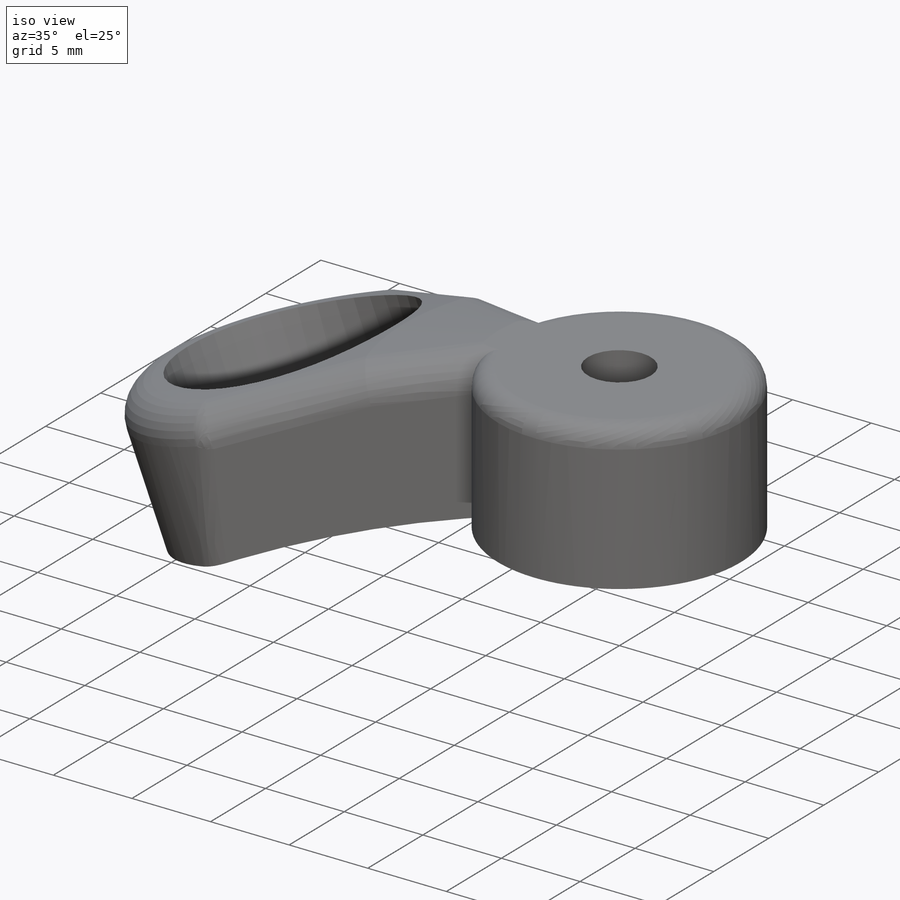
[diagram: iso view]
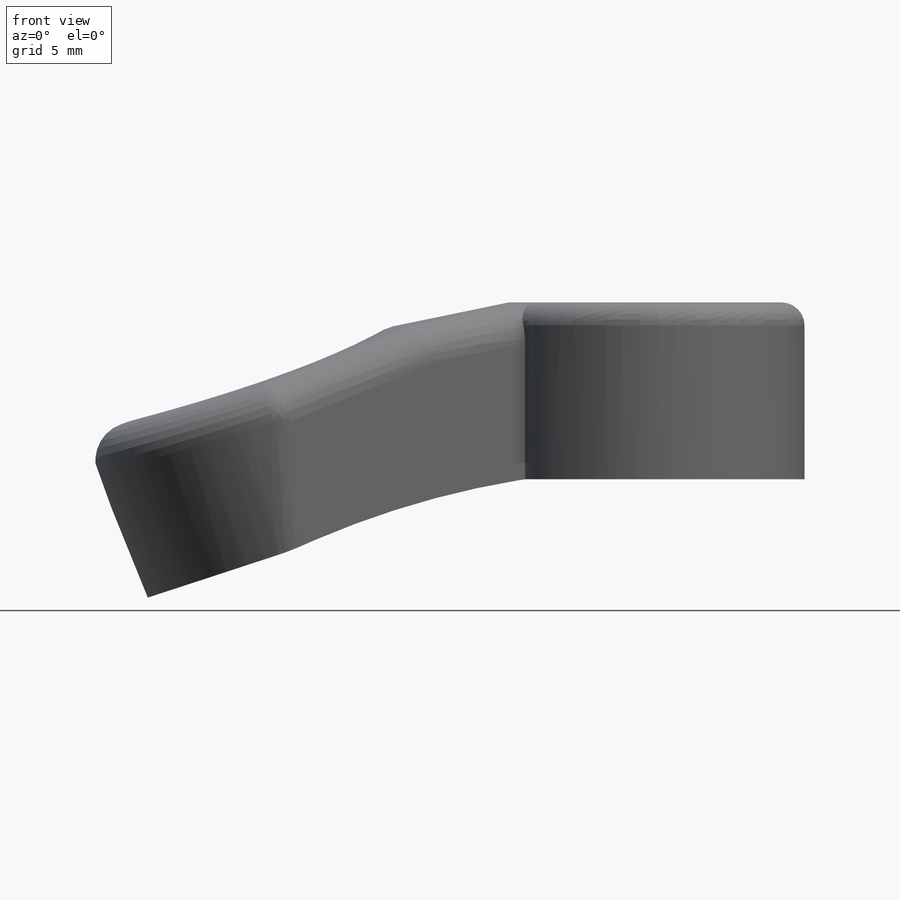
[diagram: front view]
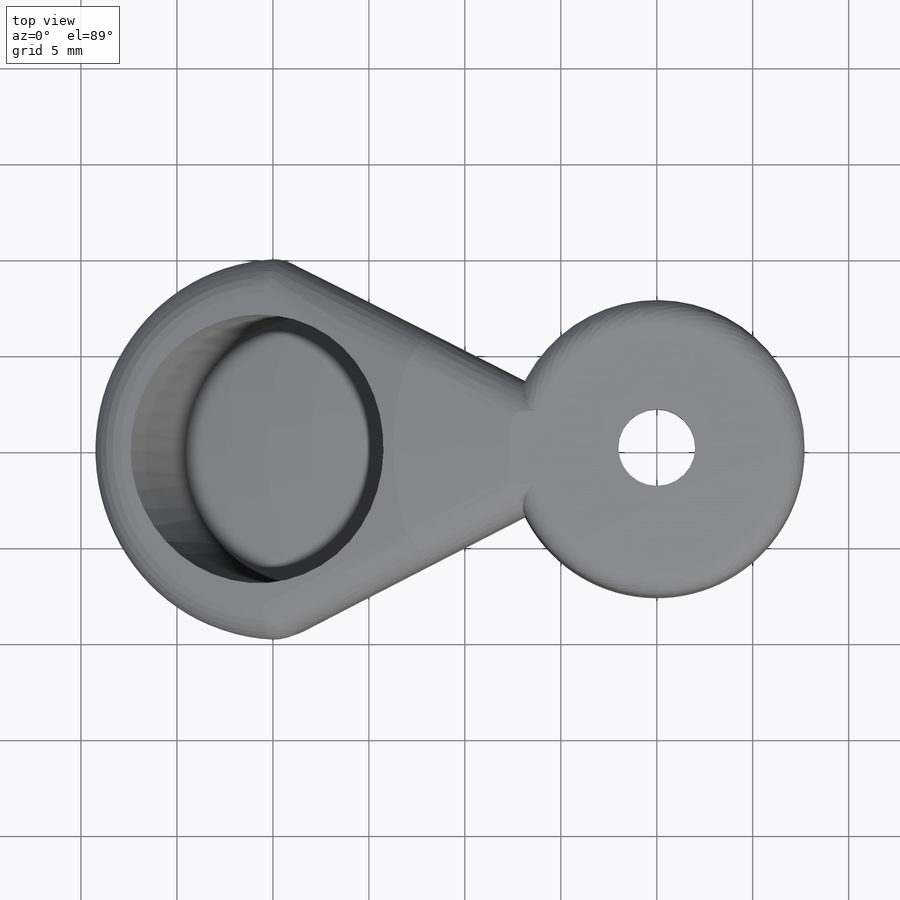
[diagram: top view]
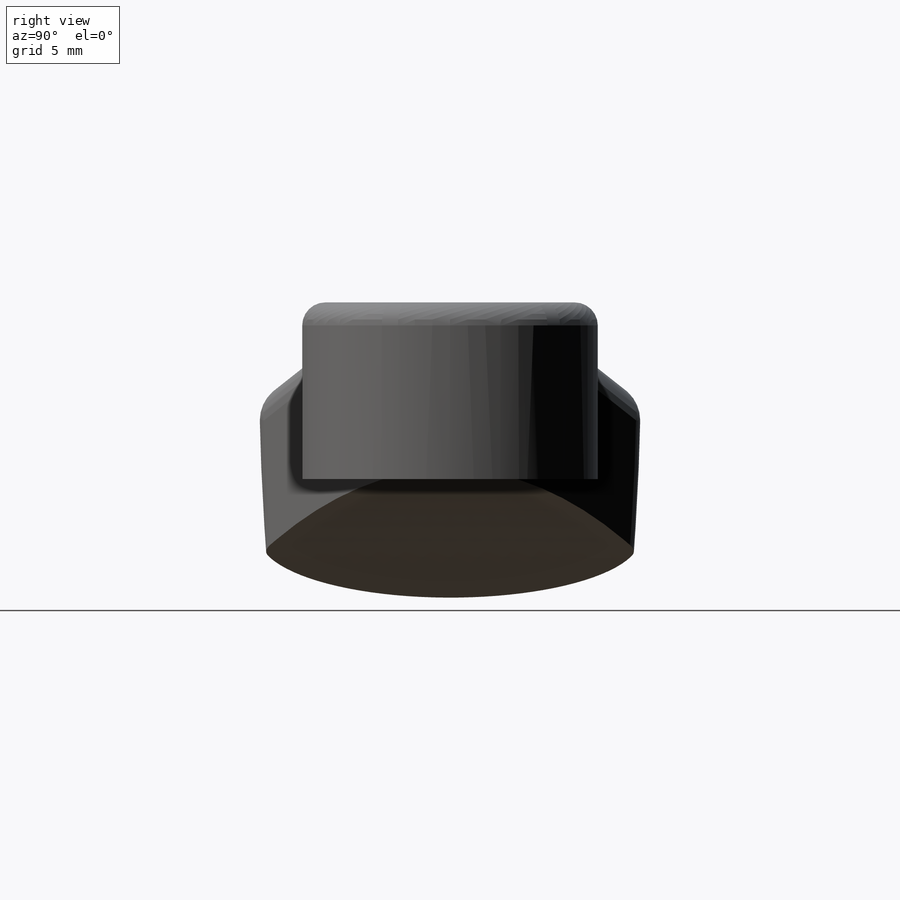
[diagram: right view]
SOLIDWORKS PART (.sldprt)
format: sldprt  version: not decoded by parser v0  size: 323,584 bytes
history: native  units: mm
features: sketch x5, cut_extrude x3, revolve x2, fillet x2, material x1, plane x1 (+12 scaffold rows collapsed)
feature tree (26):
  scaffold x12  (default folders/planes/origin — collapsed)
  material  "Material <not specified>"
  sketch  "Sketch1"  dims[D1=55.8mm D2=5.0mm D3=6.0mm D4=0.7mm D5=2.0mm D6=0.7mm D7=0.02mm]
  revolve  "Revolve1"  Angle=360deg
  sketch  "Sketch2"  dims[D1=4.0mm]
  cut_extrude  "Cut-Extrude1"  [1 undecoded]
  sketch  "Sketch3"  dims[c1.D3=~56.297408mm c1.D1=3.0mm c1.D2=17.0mm c2.D3=20.0mm c2.D4=9.0mm c2.D5=9.0mm c2.D6=17.0mm]
  revolve  "Revolve2"  Angle=27deg
  plane  "Plane1"
  sketch  "Sketch4"  dims[D1=13.0mm D2=0.5mm]
  cut_extrude  "Cut-Extrude2"  Depth=1mm
  sketch  "Sketch5"
  cut_extrude  "Cut-Extrude3"  [1 undecoded]
  fillet  "Fillet1"  Radius=2mm
  fillet  "Fillet3"  Radius=1.2mm
decode coverage: 9 of 12 modeling features carry decoded parameters
note: ~ marks probable driven/reference dimensions
note: 2 parameter values undecoded
note: suppression state not decoded; provenance and decode notes live in map.json
